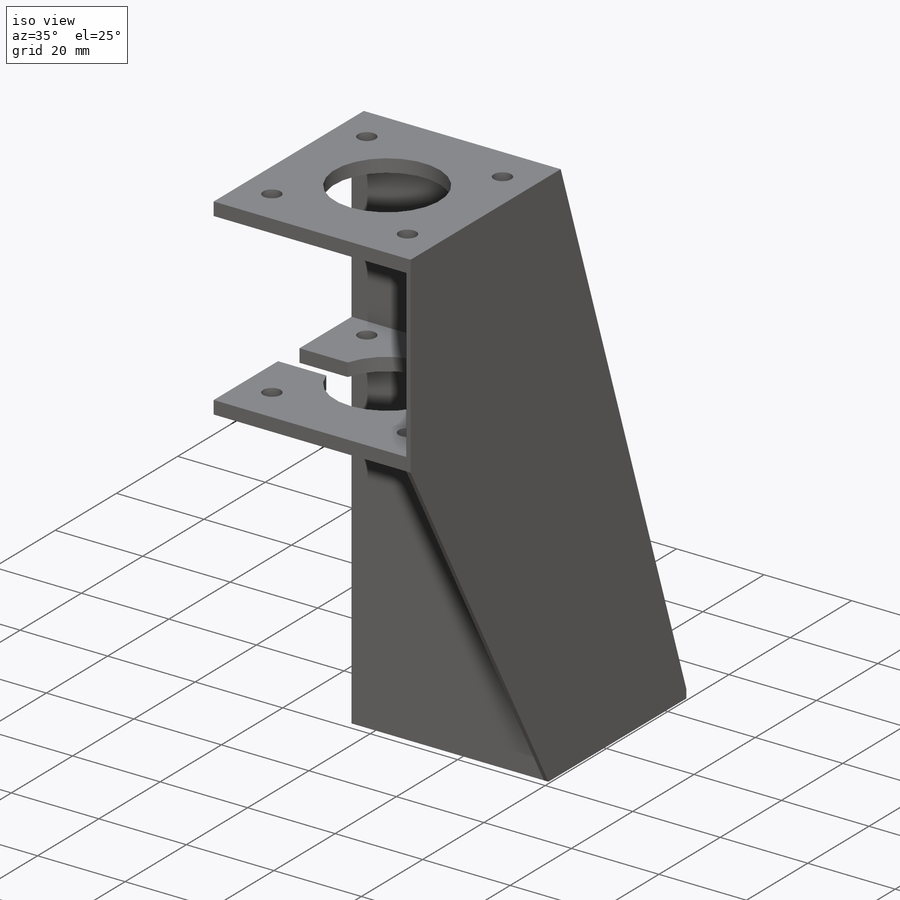
[diagram: iso view]
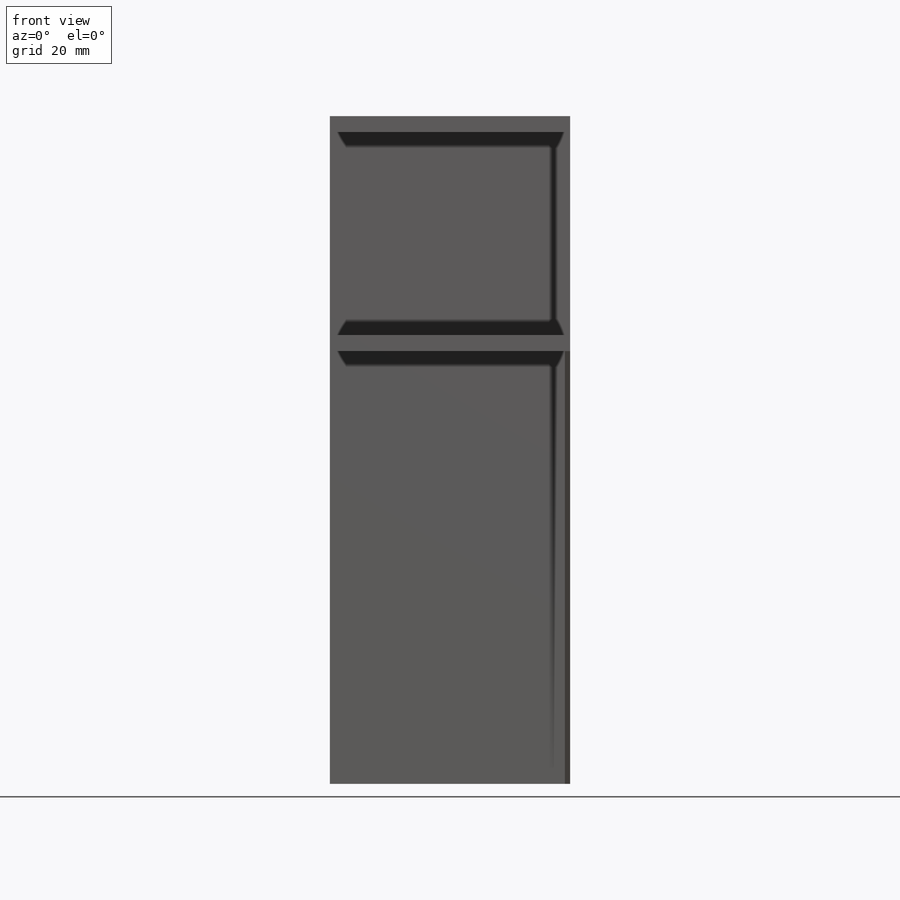
[diagram: front view]
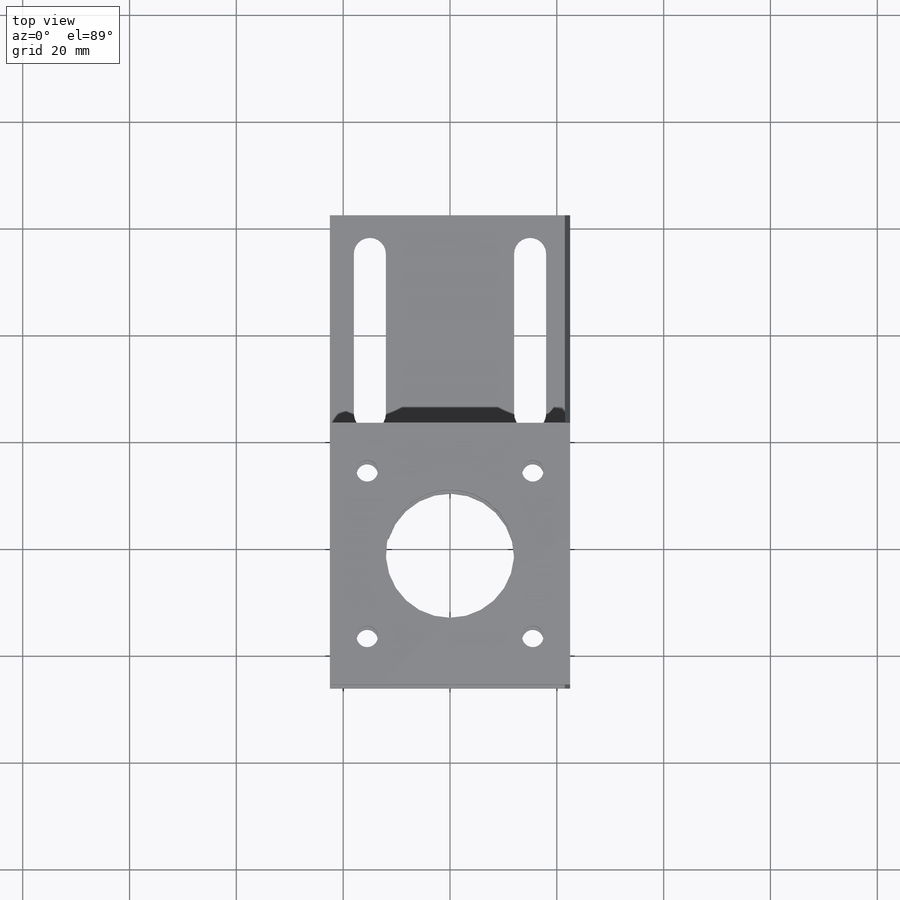
[diagram: top view]
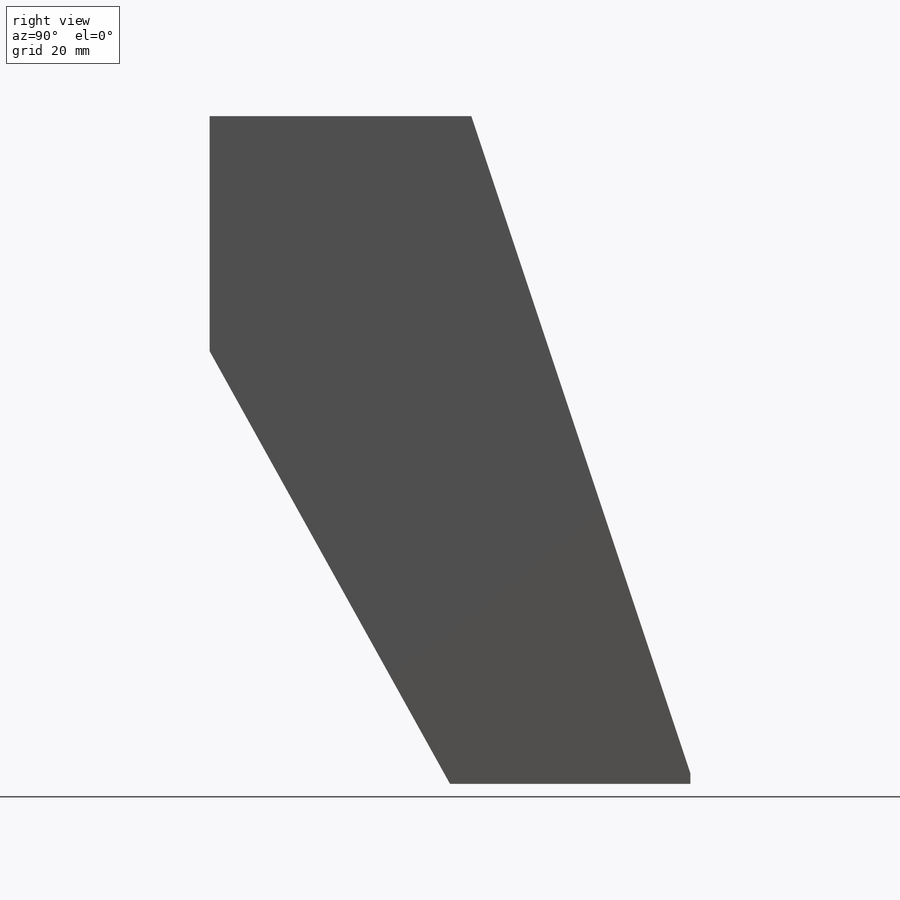
[diagram: right view]
SOLIDWORKS PART (.sldprt)
format: sldprt  version: not decoded by parser v0  size: 308,224 bytes
history: native  units: mm
features: sketch x12, extrude x8, cut_extrude x4, plane x3, material x1 (+9 scaffold rows collapsed)
feature tree (37):
  scaffold x9  (default folders/planes/origin — collapsed)
  material  "Material <sin especificar>"
  plane  "Alzado"
  plane  "Planta"
  plane  "Vista lateral"
  sketch  "Croquis1"  dims[D1=45.0mm D2=45.0mm]
  extrude  "Saliente-Extruir1"  Depth=2mm
  sketch  "Croquis2"  dims[D3=3.0mm D1=4.0mm D2=30.0mm D4=15.0mm]
  cut_extrude  "Cortar-Extruir1"  Depth=2mm
  sketch  "Croquis3"  dims[D1=4.0mm]
  extrude  "Saliente-Extruir2"  Depth=120mm
  sketch  "Croquis4"  dims[D1=0.0mm]
  extrude  "Saliente-Extruir3"  Depth=3mm
  sketch  "Croquis5"  dims[D1=3.0mm]
  extrude  "Saliente-Extruir4"  Depth=45mm
  sketch  "Croquis6"  dims[D3=24.0mm D4=4.0mm D1=31.0mm D2=31.0mm]
  cut_extrude  "Cortar-Extruir2"  [1 undecoded]
  sketch  "Croquis7"  dims[D1=3.0mm D2=38.0mm]
  extrude  "Saliente-Extruir5"  Depth=45mm
  sketch  "Croquis8"  dims[D1=0.0mm]
  cut_extrude  "Cortar-Extruir4"  [1 undecoded]
  sketch  "Croquis11"  dims[D1=7.0mm]
  cut_extrude  "Cortar-Extruir5"  Depth=45mm
  sketch  "Croquis14"
  extrude  "Saliente-Extruir6"  Depth=1mm
  sketch  "Croquis16"
  extrude  "Saliente-Extruir7"  Depth=1mm
  sketch  "Croquis17"
  extrude  "Saliente-Extruir8"  Depth=1mm
decode coverage: 19 of 24 modeling features carry decoded parameters
note: 2 parameter values undecoded
note: suppression state not decoded; provenance and decode notes live in map.json
